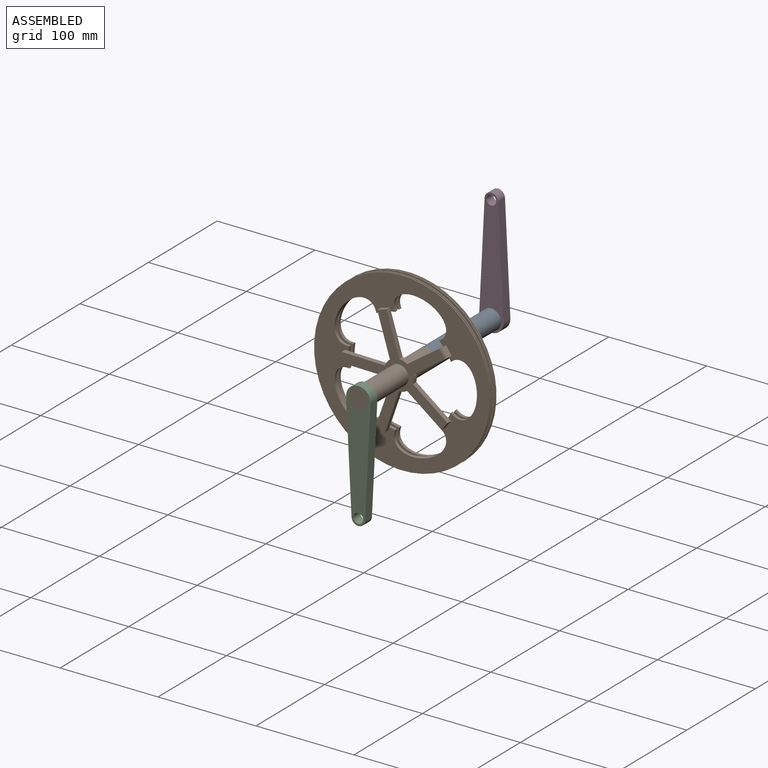
[diagram: assembled view]
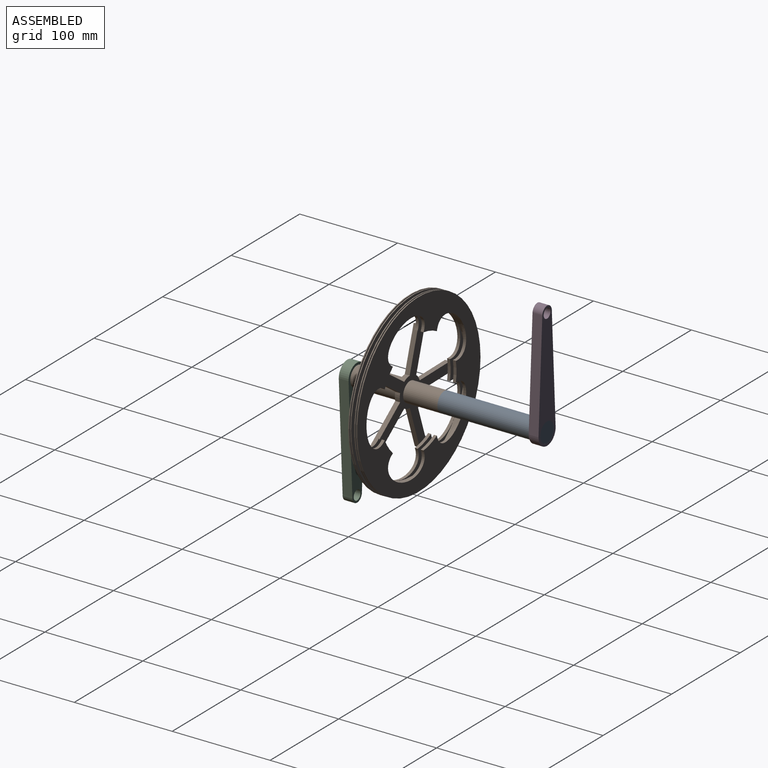
[diagram: assembled view, second angle]
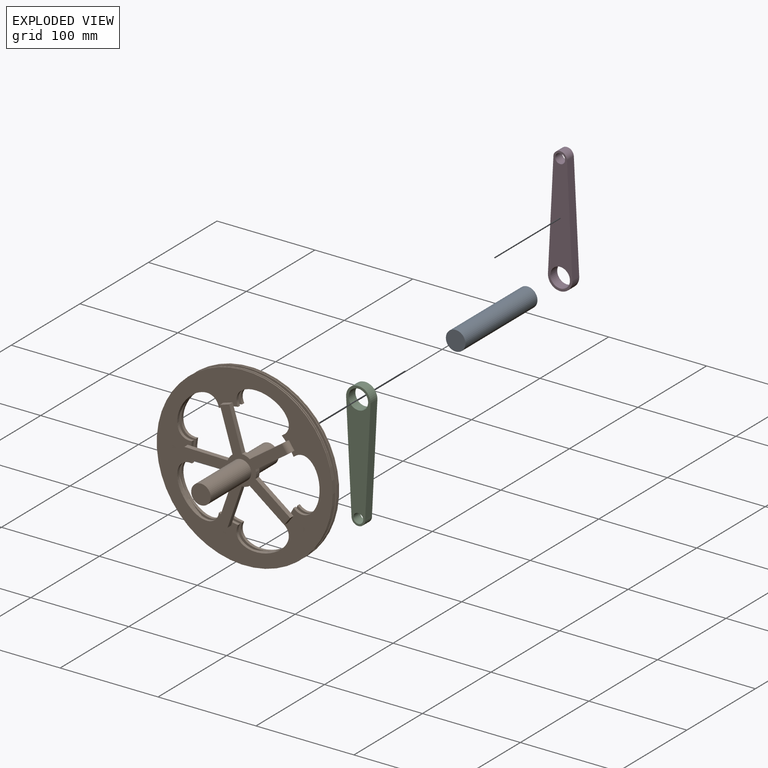
[diagram: exploded view]
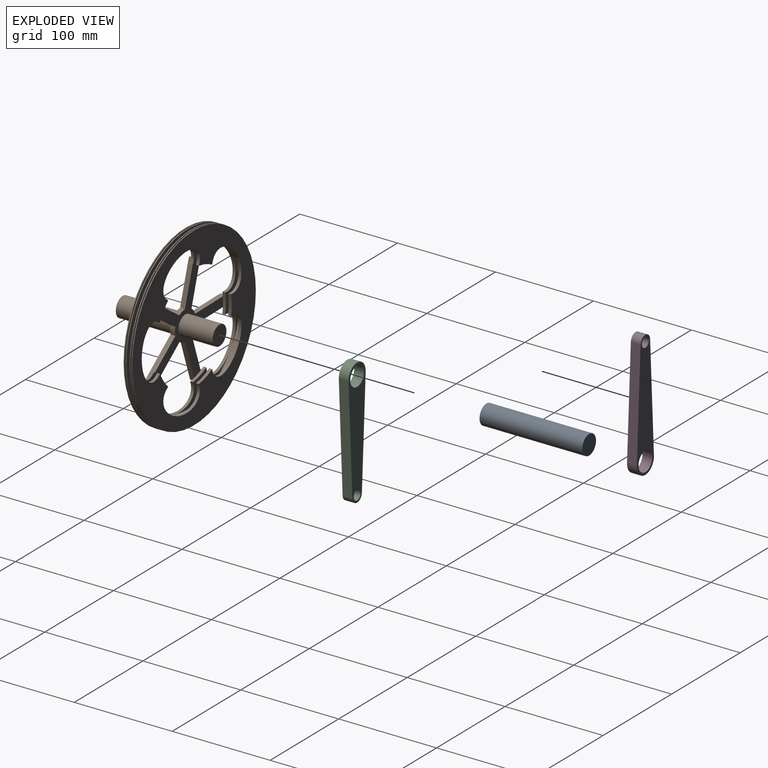
[diagram: exploded view, second angle]
ASSEMBLY  parts=4 mates=3
PART A: 3 faces, bbox 20x105x20 mm
  f0: cylinder r=10mm len=105mm, axis (0,1,0), area 6597.3mm2, adj f1,f2
  f1: plane 20x20mm, normal (0,-1,0), area 314.2mm2, adj f0
  f2: plane 20x20mm, normal (0,1,0), area 314.2mm2, adj f0
PART B: 291 faces, bbox 180x99x180 mm
  f0: cylinder r=90mm len=180mm, axis (0,1,0), area 565.5mm2, adj f2,f76
  f1: plane 153x153mm, normal (0,1,0), area 3549mm2, adj f3,f4,f5,f6,f7,f8,f9,f10
  f2: plane 180x180mm, normal (0,1,0), area 5350mm2, adj f0,f15,f16,f17,f18,f19,f20,f21
  f3: extruded ~48.98x42.62mm, area 275.9mm2, adj f1,f4,f12,f14
  f4: cylinder r=55mm len=19.47mm, axis (0,1,0), area 61.8mm2, adj f1,f3,f5,f14
  f5: extruded ~53.35x34.57mm, area 275.9mm2, adj f1,f4,f6,f14
  f6: cylinder r=55mm len=16.56mm, axis (0,1,0), area 61.8mm2, adj f1,f5,f7,f14
  f7: extruded ~54.99x26.61mm, area 275.9mm2, adj f1,f6,f8,f14
  f8: cylinder r=55mm len=16.56mm, axis (0,1,0), area 61.8mm2, adj f1,f7,f9,f14
  f9: extruded ~53.35x34.57mm, area 275.9mm2, adj f1,f8,f10,f14
  f10: cylinder r=55mm len=19.47mm, axis (0,1,0), area 61.8mm2, adj f1,f9,f11,f14
  f11: extruded ~48.98x42.62mm, area 275.9mm2, adj f1,f10,f12,f14
  f12: cylinder r=55mm len=20.47mm, axis (0,1,0), area 61.8mm2, adj f1,f3,f11,f14
  f13: cylinder r=90mm len=180mm, axis (0,1,0), area 565.5mm2, adj f14,f175
  f14: plane 180x180mm, normal (0,-1,0), area 10610.6mm2, adj f3,f4,f5,f6,f7,f8,f9,f10
  f15: cylinder r=7.5mm len=14.92mm, axis (0,-1,0), area 68.7mm2, adj f2,f16,f75,f239
  f16: cylinder r=85mm len=3mm, axis (0,-1,0), area 8.4mm2, adj f2,f15,f17,f239
  f17: cylinder r=7.5mm len=14.92mm, axis (0,-1,0), area 68.7mm2, adj f2,f16,f18,f239
  f18: cylinder r=85mm len=3mm, axis (0,-1,0), area 8.4mm2, adj f2,f17,f19,f239
  f19: cylinder r=7.5mm len=14.52mm, axis (0,-1,0), area 68.7mm2, adj f2,f18,f20,f239
  f20: cylinder r=85mm len=3mm, axis (0,-1,0), area 8.4mm2, adj f2,f19,f21,f239
  f21: cylinder r=7.5mm len=13.82mm, axis (0,-1,0), area 68.7mm2, adj f2,f20,f22,f239
  f22: cylinder r=85mm len=3mm, axis (0,-1,0), area 8.4mm2, adj f2,f21,f23,f239
  f23: cylinder r=7.5mm len=12.85mm, axis (0,-1,0), area 68.7mm2, adj f2,f22,f24,f239
  f24: cylinder r=85mm len=3mm, axis (0,-1,0), area 8.4mm2, adj f2,f23,f25,f239
  f25: cylinder r=7.5mm len=13.37mm, axis (0,-1,0), area 68.7mm2, adj f2,f24,f26,f239
  f26: cylinder r=85mm len=3mm, axis (0,-1,0), area 8.4mm2, adj f2,f25,f27,f239
  f27: cylinder r=7.5mm len=14.21mm, axis (0,-1,0), area 68.7mm2, adj f2,f26,f28,f239
  f28: cylinder r=85mm len=3mm, axis (0,-1,0), area 8.4mm2, adj f2,f27,f29,f239
  f29: cylinder r=7.5mm len=14.76mm, axis (0,-1,0), area 68.7mm2, adj f2,f28,f30,f239
  f30: cylinder r=85mm len=3mm, axis (0,-1,0), area 8.4mm2, adj f2,f29,f31,f239
  f31: cylinder r=7.5mm len=14.99mm, axis (0,-1,0), area 68.7mm2, adj f2,f30,f32,f239
  f32: cylinder r=85mm len=3mm, axis (0,-1,0), area 8.4mm2, adj f2,f31,f33,f239
  f33: cylinder r=7.5mm len=14.76mm, axis (0,-1,0), area 68.7mm2, adj f2,f32,f34,f239
  f34: cylinder r=85mm len=3mm, axis (0,-1,0), area 8.4mm2, adj f2,f33,f35,f239
  f35: cylinder r=7.5mm len=14.21mm, axis (0,-1,0), area 68.7mm2, adj f2,f34,f36,f239
  f36: cylinder r=85mm len=3mm, axis (0,-1,0), area 8.4mm2, adj f2,f35,f37,f239
  f37: cylinder r=7.5mm len=13.37mm, axis (0,-1,0), area 68.7mm2, adj f2,f36,f38,f239
  f38: cylinder r=85mm len=3mm, axis (0,-1,0), area 8.4mm2, adj f2,f37,f39,f239
  f39: cylinder r=7.5mm len=12.85mm, axis (0,-1,0), area 68.7mm2, adj f2,f38,f40,f239
  f40: cylinder r=85mm len=3mm, axis (0,-1,0), area 8.4mm2, adj f2,f39,f41,f239
  f41: cylinder r=7.5mm len=13.82mm, axis (0,-1,0), area 68.7mm2, adj f2,f40,f42,f239
  f42: cylinder r=85mm len=3mm, axis (0,-1,0), area 8.4mm2, adj f2,f41,f43,f239
  f43: cylinder r=7.5mm len=14.52mm, axis (0,-1,0), area 68.7mm2, adj f2,f42,f44,f239
  f44: cylinder r=85mm len=3mm, axis (0,-1,0), area 8.4mm2, adj f2,f43,f45,f239
  f45: cylinder r=7.5mm len=14.92mm, axis (0,-1,0), area 68.7mm2, adj f2,f44,f46,f239
  f46: cylinder r=85mm len=3mm, axis (0,-1,0), area 8.4mm2, adj f2,f45,f47,f239
  f47: cylinder r=7.5mm len=14.92mm, axis (0,-1,0), area 68.7mm2, adj f2,f46,f48,f239
  f48: cylinder r=85mm len=3mm, axis (0,-1,0), area 8.4mm2, adj f2,f47,f49,f239
  f49: cylinder r=7.5mm len=14.52mm, axis (0,-1,0), area 68.7mm2, adj f2,f48,f50,f239
  f50: cylinder r=85mm len=3mm, axis (0,-1,0), area 8.4mm2, adj f2,f49,f51,f239
  f51: cylinder r=7.5mm len=13.82mm, axis (0,-1,0), area 68.7mm2, adj f2,f50,f52,f239
  f52: cylinder r=85mm len=3mm, axis (0,-1,0), area 8.4mm2, adj f2,f51,f53,f239
  f53: cylinder r=7.5mm len=12.85mm, axis (0,-1,0), area 68.7mm2, adj f2,f52,f54,f239
  f54: cylinder r=85mm len=3mm, axis (0,-1,0), area 8.4mm2, adj f2,f53,f55,f239
  f55: cylinder r=7.5mm len=13.37mm, axis (0,-1,0), area 68.7mm2, adj f2,f54,f56,f239
  f56: cylinder r=85mm len=3mm, axis (0,-1,0), area 8.4mm2, adj f2,f55,f57,f239
  f57: cylinder r=7.5mm len=14.21mm, axis (0,-1,0), area 68.7mm2, adj f2,f56,f58,f239
  f58: cylinder r=85mm len=3mm, axis (0,-1,0), area 8.4mm2, adj f2,f57,f59,f239
  f59: cylinder r=7.5mm len=14.76mm, axis (0,-1,0), area 68.7mm2, adj f2,f58,f60,f239
  f60: cylinder r=85mm len=3mm, axis (0,-1,0), area 8.4mm2, adj f2,f59,f61,f239
  f61: cylinder r=7.5mm len=14.99mm, axis (0,-1,0), area 68.7mm2, adj f2,f60,f62,f239
  f62: cylinder r=85mm len=3mm, axis (0,-1,0), area 8.4mm2, adj f2,f61,f63,f239
  f63: cylinder r=7.5mm len=14.76mm, axis (0,-1,0), area 68.7mm2, adj f2,f62,f64,f239
  f64: cylinder r=85mm len=3mm, axis (0,-1,0), area 8.4mm2, adj f2,f63,f65,f239
  f65: cylinder r=7.5mm len=14.21mm, axis (0,-1,0), area 68.7mm2, adj f2,f64,f66,f239
  f66: cylinder r=85mm len=3mm, axis (0,-1,0), area 8.4mm2, adj f2,f65,f67,f239
  f67: cylinder r=7.5mm len=13.37mm, axis (0,-1,0), area 68.7mm2, adj f2,f66,f68,f239
  f68: cylinder r=85mm len=3mm, axis (0,-1,0), area 8.4mm2, adj f2,f67,f69,f239
  f69: cylinder r=7.5mm len=12.85mm, axis (0,-1,0), area 68.7mm2, adj f2,f68,f70,f239
  f70: cylinder r=85mm len=3mm, axis (0,-1,0), area 8.4mm2, adj f2,f69,f71,f239
  f71: cylinder r=7.5mm len=13.82mm, axis (0,-1,0), area 68.7mm2, adj f2,f70,f72,f239
  f72: cylinder r=85mm len=3mm, axis (0,-1,0), area 8.4mm2, adj f2,f71,f73,f239
  f73: cylinder r=7.5mm len=14.52mm, axis (0,-1,0), area 68.7mm2, adj f2,f72,f75,f239
  f74: cylinder r=76.5mm len=153mm, axis (0,-1,0), area 1442mm2, adj f1,f238
  f75: cylinder r=85mm len=3mm, axis (0,-1,0), area 8.4mm2, adj f2,f15,f73,f239
  f76: plane 180x180mm, normal (0,-1,0), area 9419.7mm2, adj f0,f77,f78,f79,f80,f81,f82,f83
  f77: cylinder r=77.5mm len=7.85mm, axis (0,-1,0), area 25.8mm2, adj f76,f78,f136,f232
  f78: cylinder r=8.5mm len=6.25mm, axis (0,-1,0), area 23.9mm2, adj f76,f77,f136,f233
  f79: cylinder r=77.5mm len=6.95mm, axis (0,-1,0), area 25.8mm2, adj f76,f80,f137,f230
  f80: cylinder r=8.5mm len=7.04mm, axis (0,-1,0), area 23.9mm2, adj f76,f79,f137,f231
  f81: cylinder r=77.5mm len=6.38mm, axis (0,-1,0), area 25.8mm2, adj f76,f82,f138,f228
  f82: cylinder r=8.5mm len=7.52mm, axis (0,-1,0), area 23.9mm2, adj f76,f81,f138,f229
  f83: cylinder r=77.5mm len=7.44mm, axis (0,-1,0), area 25.8mm2, adj f76,f84,f139,f226
  f84: cylinder r=8.5mm len=7.68mm, axis (0,-1,0), area 23.9mm2, adj f76,f83,f139,f227
  f85: cylinder r=77.5mm len=8.17mm, axis (0,-1,0), area 25.8mm2, adj f76,f86,f140,f224
  f86: cylinder r=8.5mm len=7.5mm, axis (0,-1,0), area 23.9mm2, adj f76,f85,f140,f225
  f87: cylinder r=77.5mm len=8.54mm, axis (0,-1,0), area 25.8mm2, adj f76,f88,f141,f222
  f88: cylinder r=8.5mm len=6.99mm, axis (0,-1,0), area 23.9mm2, adj f76,f87,f141,f223
  f89: cylinder r=77.5mm len=8.54mm, axis (0,-1,0), area 25.8mm2, adj f76,f90,f142,f220
  f90: cylinder r=8.5mm len=6.18mm, axis (0,-1,0), area 23.9mm2, adj f76,f89,f142,f221
  f91: cylinder r=77.5mm len=8.17mm, axis (0,-1,0), area 25.8mm2, adj f76,f92,f143,f218
  f92: cylinder r=8.5mm len=5.75mm, axis (0,-1,0), area 23.9mm2, adj f76,f91,f143,f219
  f93: cylinder r=77.5mm len=7.44mm, axis (0,-1,0), area 25.8mm2, adj f76,f94,f144,f216
  f94: cylinder r=8.5mm len=6.68mm, axis (0,-1,0), area 23.9mm2, adj f76,f93,f144,f217
  f95: cylinder r=77.5mm len=6.38mm, axis (0,-1,0), area 25.8mm2, adj f76,f96,f145,f214
  f96: cylinder r=8.5mm len=7.32mm, axis (0,-1,0), area 23.9mm2, adj f76,f95,f145,f215
  f97: cylinder r=77.5mm len=6.95mm, axis (0,-1,0), area 25.8mm2, adj f76,f98,f146,f212
  f98: cylinder r=8.5mm len=7.64mm, axis (0,-1,0), area 23.9mm2, adj f76,f97,f146,f213
  f99: cylinder r=77.5mm len=7.85mm, axis (0,-1,0), area 25.8mm2, adj f76,f100,f147,f210
  f100: cylinder r=8.5mm len=7.63mm, axis (0,-1,0), area 23.9mm2, adj f76,f99,f147,f211
  f101: cylinder r=77.5mm len=8.4mm, axis (0,-1,0), area 25.8mm2, adj f76,f102,f148,f208
  f102: cylinder r=8.5mm len=7.28mm, axis (0,-1,0), area 23.9mm2, adj f76,f101,f148,f209
  f103: cylinder r=77.5mm len=8.59mm, axis (0,-1,0), area 25.8mm2, adj f76,f104,f149,f206
  f104: cylinder r=8.5mm len=6.62mm, axis (0,-1,0), area 23.9mm2, adj f76,f103,f149,f207
  f105: cylinder r=77.5mm len=8.4mm, axis (0,-1,0), area 25.8mm2, adj f76,f106,f150,f204
  f106: cylinder r=8.5mm len=5.66mm, axis (0,-1,0), area 23.9mm2, adj f76,f105,f150,f205
  f107: cylinder r=77.5mm len=7.85mm, axis (0,-1,0), area 25.8mm2, adj f76,f108,f151,f202
  f108: cylinder r=8.5mm len=6.25mm, axis (0,-1,0), area 23.9mm2, adj f76,f107,f151,f203
  f109: cylinder r=77.5mm len=6.95mm, axis (0,-1,0), area 25.8mm2, adj f76,f110,f152,f200
  f110: cylinder r=8.5mm len=7.04mm, axis (0,-1,0), area 23.9mm2, adj f76,f109,f152,f201
  f111: cylinder r=77.5mm len=6.38mm, axis (0,-1,0), area 25.8mm2, adj f76,f112,f153,f198
  f112: cylinder r=8.5mm len=7.52mm, axis (0,-1,0), area 23.9mm2, adj f76,f111,f153,f199
  f113: cylinder r=77.5mm len=7.44mm, axis (0,-1,0), area 25.8mm2, adj f76,f114,f154,f196
  f114: cylinder r=8.5mm len=7.68mm, axis (0,-1,0), area 23.9mm2, adj f76,f113,f154,f197
  f115: cylinder r=77.5mm len=8.17mm, axis (0,-1,0), area 25.8mm2, adj f76,f116,f155,f194
  f116: cylinder r=8.5mm len=7.5mm, axis (0,-1,0), area 23.9mm2, adj f76,f115,f155,f195
  f117: cylinder r=77.5mm len=8.54mm, axis (0,-1,0), area 25.8mm2, adj f76,f118,f156,f192
  f118: cylinder r=8.5mm len=6.99mm, axis (0,-1,0), area 23.9mm2, adj f76,f117,f156,f193
  f119: cylinder r=77.5mm len=8.54mm, axis (0,-1,0), area 25.8mm2, adj f76,f120,f157,f190
  f120: cylinder r=8.5mm len=6.18mm, axis (0,-1,0), area 23.9mm2, adj f76,f119,f157,f191
  f121: cylinder r=77.5mm len=8.17mm, axis (0,-1,0), area 25.8mm2, adj f76,f122,f158,f188
  f122: cylinder r=8.5mm len=5.75mm, axis (0,-1,0), area 23.9mm2, adj f76,f121,f158,f189
  f123: cylinder r=77.5mm len=7.44mm, axis (0,-1,0), area 25.8mm2, adj f76,f124,f159,f186
  f124: cylinder r=8.5mm len=6.68mm, axis (0,-1,0), area 23.9mm2, adj f76,f123,f159,f187
  f125: cylinder r=77.5mm len=6.38mm, axis (0,-1,0), area 25.8mm2, adj f76,f126,f160,f184
  f126: cylinder r=8.5mm len=7.32mm, axis (0,-1,0), area 23.9mm2, adj f76,f125,f160,f185
  f127: cylinder r=77.5mm len=6.95mm, axis (0,-1,0), area 25.8mm2, adj f76,f128,f161,f182
  f128: cylinder r=8.5mm len=7.64mm, axis (0,-1,0), area 23.9mm2, adj f76,f127,f161,f183
  f129: cylinder r=77.5mm len=7.85mm, axis (0,-1,0), area 25.8mm2, adj f76,f130,f162,f180
  f130: cylinder r=8.5mm len=7.63mm, axis (0,-1,0), area 23.9mm2, adj f76,f129,f162,f181
  f131: cylinder r=77.5mm len=8.4mm, axis (0,-1,0), area 25.8mm2, adj f76,f132,f163,f178
  f132: cylinder r=8.5mm len=7.28mm, axis (0,-1,0), area 23.9mm2, adj f76,f131,f163,f179
  f133: cylinder r=77.5mm len=8.59mm, axis (0,-1,0), area 25.8mm2, adj f76,f134,f164,f176
  f134: cylinder r=8.5mm len=6.62mm, axis (0,-1,0), area 23.9mm2, adj f76,f133,f164,f177
  f135: cylinder r=8.5mm len=5.66mm, axis (0,-1,0), area 23.9mm2, adj f76,f235,f236,f237
  f136: plane 7.96x7.85mm, normal (0,-1,0), area 20.9mm2, adj f77,f78,f232,f233
  f137: plane 8.11x7.69mm, normal (0,-1,0), area 20.9mm2, adj f79,f80,f230,f231
  f138: plane 8.06x7.92mm, normal (0,-1,0), area 20.9mm2, adj f81,f82,f228,f229
  f139: plane 8.08x7.44mm, normal (0,-1,0), area 20.9mm2, adj f83,f84,f226,f227
  f140: plane 8.17x7.75mm, normal (0,-1,0), area 20.9mm2, adj f85,f86,f224,f225
  f141: plane 8.54x7.07mm, normal (0,-1,0), area 20.9mm2, adj f87,f88,f222,f223
  f142: plane 8.54x7.07mm, normal (0,-1,0), area 20.9mm2, adj f89,f90,f220,f221
  f143: plane 8.17x7.75mm, normal (0,-1,0), area 20.9mm2, adj f91,f92,f218,f219
  f144: plane 8.08x7.44mm, normal (0,-1,0), area 20.9mm2, adj f93,f94,f216,f217
  f145: plane 8.06x7.92mm, normal (0,-1,0), area 20.9mm2, adj f95,f96,f214,f215
  f146: plane 8.11x7.69mm, normal (0,-1,0), area 20.9mm2, adj f97,f98,f212,f213
  f147: plane 7.96x7.85mm, normal (0,-1,0), area 20.9mm2, adj f99,f100,f210,f211
  f148: plane 8.4x7.45mm, normal (0,-1,0), area 20.9mm2, adj f101,f102,f208,f209
  f149: plane 8.59x6.62mm, normal (0,-1,0), area 20.9mm2, adj f103,f104,f206,f207
  f150: plane 8.4x7.45mm, normal (0,-1,0), area 20.9mm2, adj f105,f106,f204,f205
  f151: plane 7.96x7.85mm, normal (0,-1,0), area 20.9mm2, adj f107,f108,f202,f203
  f152: plane 8.11x7.69mm, normal (0,-1,0), area 20.9mm2, adj f109,f110,f200,f201
  f153: plane 8.06x7.92mm, normal (0,-1,0), area 20.9mm2, adj f111,f112,f198,f199
  f154: plane 8.08x7.44mm, normal (0,-1,0), area 20.9mm2, adj f113,f114,f196,f197
  f155: plane 8.17x7.75mm, normal (0,-1,0), area 20.9mm2, adj f115,f116,f194,f195
  f156: plane 8.54x7.07mm, normal (0,-1,0), area 20.9mm2, adj f117,f118,f192,f193
  f157: plane 8.54x7.07mm, normal (0,-1,0), area 20.9mm2, adj f119,f120,f190,f191
  f158: plane 8.17x7.75mm, normal (0,-1,0), area 20.9mm2, adj f121,f122,f188,f189
  f159: plane 8.08x7.44mm, normal (0,-1,0), area 20.9mm2, adj f123,f124,f186,f187
  f160: plane 8.06x7.92mm, normal (0,-1,0), area 20.9mm2, adj f125,f126,f184,f185
  f161: plane 8.11x7.69mm, normal (0,-1,0), area 20.9mm2, adj f127,f128,f182,f183
  f162: plane 7.96x7.85mm, normal (0,-1,0), area 20.9mm2, adj f129,f130,f180,f181
  f163: plane 8.4x7.45mm, normal (0,-1,0), area 20.9mm2, adj f131,f132,f178,f179
  f164: plane 8.59x6.62mm, normal (0,-1,0), area 20.9mm2, adj f133,f134,f176,f177
  f165: extruded ~50.98x44.33mm, area 93.9mm2, adj f76,f166,f174,f175
  f166: cylinder r=56mm len=17.33mm, axis (0,1,0), area 18.3mm2, adj f76,f165,f167,f175
  f167: extruded ~55.38x35.78mm, area 93.9mm2, adj f76,f166,f168,f175
  f168: cylinder r=56mm len=14.74mm, axis (0,1,0), area 18.3mm2, adj f76,f167,f169,f175
  f169: extruded ~56.97x27.28mm, area 93.9mm2, adj f76,f168,f170,f175
  f170: cylinder r=56mm len=14.74mm, axis (0,1,0), area 18.3mm2, adj f76,f169,f171,f175
  f171: extruded ~55.38x35.78mm, area 93.9mm2, adj f76,f170,f172,f175
  f172: cylinder r=56mm len=17.33mm, axis (0,1,0), area 18.3mm2, adj f76,f171,f173,f175
  f173: extruded ~50.98x44.33mm, area 93.9mm2, adj f76,f172,f174,f175
  f174: cylinder r=56mm len=18.22mm, axis (0,1,0), area 18.3mm2, adj f76,f165,f173,f175
  f175: plane 180x180mm, normal (0,1,0), area 10046.9mm2, adj f13,f165,f166,f167,f168,f169,f170,f171
  f176: cylinder r=8.5mm len=6.62mm, axis (0,-1,0), area 23.9mm2, adj f76,f133,f164,f177
  f177: cylinder r=84mm len=3mm, axis (0,-1,0), area 2.4mm2, adj f76,f134,f164,f176
  f178: cylinder r=8.5mm len=5.66mm, axis (0,-1,0), area 23.9mm2, adj f76,f131,f163,f179
  f179: cylinder r=84mm len=3mm, axis (0,-1,0), area 2.4mm2, adj f76,f132,f163,f178
  f180: cylinder r=8.5mm len=6.25mm, axis (0,-1,0), area 23.9mm2, adj f76,f129,f162,f181
  f181: cylinder r=84mm len=3mm, axis (0,-1,0), area 2.4mm2, adj f76,f130,f162,f180
  f182: cylinder r=8.5mm len=7.04mm, axis (0,-1,0), area 23.9mm2, adj f76,f127,f161,f183
  f183: cylinder r=84mm len=3mm, axis (0,-1,0), area 2.4mm2, adj f76,f128,f161,f182
  f184: cylinder r=8.5mm len=7.52mm, axis (0,-1,0), area 23.9mm2, adj f76,f125,f160,f185
  f185: cylinder r=84mm len=3mm, axis (0,-1,0), area 2.4mm2, adj f76,f126,f160,f184
  f186: cylinder r=8.5mm len=7.68mm, axis (0,-1,0), area 23.9mm2, adj f76,f123,f159,f187
  f187: cylinder r=84mm len=3mm, axis (0,-1,0), area 2.4mm2, adj f76,f124,f159,f186
  f188: cylinder r=8.5mm len=7.5mm, axis (0,-1,0), area 23.9mm2, adj f76,f121,f158,f189
  f189: cylinder r=84mm len=3mm, axis (0,-1,0), area 2.4mm2, adj f76,f122,f158,f188
  f190: cylinder r=8.5mm len=6.99mm, axis (0,-1,0), area 23.9mm2, adj f76,f119,f157,f191
  f191: cylinder r=84mm len=3mm, axis (0,-1,0), area 2.4mm2, adj f76,f120,f157,f190
  f192: cylinder r=8.5mm len=6.18mm, axis (0,-1,0), area 23.9mm2, adj f76,f117,f156,f193
  f193: cylinder r=84mm len=3mm, axis (0,-1,0), area 2.4mm2, adj f76,f118,f156,f192
  f194: cylinder r=8.5mm len=5.75mm, axis (0,-1,0), area 23.9mm2, adj f76,f115,f155,f195
  f195: cylinder r=84mm len=3mm, axis (0,-1,0), area 2.4mm2, adj f76,f116,f155,f194
  f196: cylinder r=8.5mm len=6.68mm, axis (0,-1,0), area 23.9mm2, adj f76,f113,f154,f197
  f197: cylinder r=84mm len=3mm, axis (0,-1,0), area 2.4mm2, adj f76,f114,f154,f196
  f198: cylinder r=8.5mm len=7.32mm, axis (0,-1,0), area 23.9mm2, adj f76,f111,f153,f199
  f199: cylinder r=84mm len=3mm, axis (0,-1,0), area 2.4mm2, adj f76,f112,f153,f198
  f200: cylinder r=8.5mm len=7.64mm, axis (0,-1,0), area 23.9mm2, adj f76,f109,f152,f201
  f201: cylinder r=84mm len=3mm, axis (0,-1,0), area 2.4mm2, adj f76,f110,f152,f200
  f202: cylinder r=8.5mm len=7.63mm, axis (0,-1,0), area 23.9mm2, adj f76,f107,f151,f203
  f203: cylinder r=84mm len=3mm, axis (0,-1,0), area 2.4mm2, adj f76,f108,f151,f202
  f204: cylinder r=8.5mm len=7.28mm, axis (0,-1,0), area 23.9mm2, adj f76,f105,f150,f205
  f205: cylinder r=84mm len=3mm, axis (0,-1,0), area 2.4mm2, adj f76,f106,f150,f204
  f206: cylinder r=8.5mm len=6.62mm, axis (0,-1,0), area 23.9mm2, adj f76,f103,f149,f207
  f207: cylinder r=84mm len=3mm, axis (0,-1,0), area 2.4mm2, adj f76,f104,f149,f206
  f208: cylinder r=8.5mm len=5.66mm, axis (0,-1,0), area 23.9mm2, adj f76,f101,f148,f209
  f209: cylinder r=84mm len=3mm, axis (0,-1,0), area 2.4mm2, adj f76,f102,f148,f208
  f210: cylinder r=8.5mm len=6.25mm, axis (0,-1,0), area 23.9mm2, adj f76,f99,f147,f211
  f211: cylinder r=84mm len=3mm, axis (0,-1,0), area 2.4mm2, adj f76,f100,f147,f210
  f212: cylinder r=8.5mm len=7.04mm, axis (0,-1,0), area 23.9mm2, adj f76,f97,f146,f213
  f213: cylinder r=84mm len=3mm, axis (0,-1,0), area 2.4mm2, adj f76,f98,f146,f212
  f214: cylinder r=8.5mm len=7.52mm, axis (0,-1,0), area 23.9mm2, adj f76,f95,f145,f215
  f215: cylinder r=84mm len=3mm, axis (0,-1,0), area 2.4mm2, adj f76,f96,f145,f214
  f216: cylinder r=8.5mm len=7.68mm, axis (0,-1,0), area 23.9mm2, adj f76,f93,f144,f217
  f217: cylinder r=84mm len=3mm, axis (0,-1,0), area 2.4mm2, adj f76,f94,f144,f216
  f218: cylinder r=8.5mm len=7.5mm, axis (0,-1,0), area 23.9mm2, adj f76,f91,f143,f219
  f219: cylinder r=84mm len=3mm, axis (0,-1,0), area 2.4mm2, adj f76,f92,f143,f218
  f220: cylinder r=8.5mm len=6.99mm, axis (0,-1,0), area 23.9mm2, adj f76,f89,f142,f221
  f221: cylinder r=84mm len=3mm, axis (0,-1,0), area 2.4mm2, adj f76,f90,f142,f220
  f222: cylinder r=8.5mm len=6.18mm, axis (0,-1,0), area 23.9mm2, adj f76,f87,f141,f223
  f223: cylinder r=84mm len=3mm, axis (0,-1,0), area 2.4mm2, adj f76,f88,f141,f222
  f224: cylinder r=8.5mm len=5.75mm, axis (0,-1,0), area 23.9mm2, adj f76,f85,f140,f225
  f225: cylinder r=84mm len=3mm, axis (0,-1,0), area 2.4mm2, adj f76,f86,f140,f224
  f226: cylinder r=8.5mm len=6.68mm, axis (0,-1,0), area 23.9mm2, adj f76,f83,f139,f227
  f227: cylinder r=84mm len=3mm, axis (0,-1,0), area 2.4mm2, adj f76,f84,f139,f226
  f228: cylinder r=8.5mm len=7.32mm, axis (0,-1,0), area 23.9mm2, adj f76,f81,f138,f229
  f229: cylinder r=84mm len=3mm, axis (0,-1,0), area 2.4mm2, adj f76,f82,f138,f228
  f230: cylinder r=8.5mm len=7.64mm, axis (0,-1,0), area 23.9mm2, adj f76,f79,f137,f231
  f231: cylinder r=84mm len=3mm, axis (0,-1,0), area 2.4mm2, adj f76,f80,f137,f230
  f232: cylinder r=8.5mm len=7.63mm, axis (0,-1,0), area 23.9mm2, adj f76,f77,f136,f233
  f233: cylinder r=84mm len=3mm, axis (0,-1,0), area 2.4mm2, adj f76,f78,f136,f232
  f234: cylinder r=8.5mm len=7.28mm, axis (0,-1,0), area 23.9mm2, adj f76,f235,f236,f237
  f235: cylinder r=77.5mm len=8.4mm, axis (0,-1,0), area 25.8mm2, adj f76,f135,f234,f237
  f236: cylinder r=84mm len=3mm, axis (0,-1,0), area 2.4mm2, adj f76,f135,f234,f237
  f237: plane 8.4x7.45mm, normal (0,-1,0), area 20.9mm2, adj f135,f234,f235,f236
  f238: plane 153x153mm, normal (0,-1,0), area 3549mm2, adj f74,f241,f242,f243,f244,f245,f246,f247
  f239: plane 180x180mm, normal (0,-1,0), area 5350mm2, adj f15,f16,f17,f18,f19,f20,f21,f22
  f240: cylinder r=90mm len=180mm, axis (0,-1,0), area 565.5mm2, adj f239,f264
  f241: extruded ~48.98x42.62mm, area 275.9mm2, adj f238,f242,f251,f252
  f242: cylinder r=55mm len=19.47mm, axis (0,-1,0), area 61.8mm2, adj f238,f241,f243,f252,f265
  f243: extruded ~53.35x34.57mm, area 275.9mm2, adj f238,f242,f244,f252
  f244: cylinder r=55mm len=16.56mm, axis (0,-1,0), area 61.8mm2, adj f238,f243,f245,f252,f265
  f245: extruded ~54.99x26.61mm, area 275.9mm2, adj f238,f244,f246,f252
  f246: cylinder r=55mm len=16.56mm, axis (0,-1,0), area 61.8mm2, adj f238,f245,f247,f252,f265
  f247: extruded ~53.35x34.57mm, area 275.9mm2, adj f238,f246,f248,f252
  f248: cylinder r=55mm len=19.47mm, axis (0,-1,0), area 61.8mm2, adj f238,f247,f249,f252,f265
  f249: extruded ~48.98x42.62mm, area 275.9mm2, adj f238,f248,f251,f252
  f250: cylinder r=90mm len=180mm, axis (0,-1,0), area 565.5mm2, adj f252,f263
  f251: cylinder r=55mm len=20.47mm, axis (0,-1,0), area 61.8mm2, adj f238,f241,f249,f252,f265
  f252: plane 180x180mm, normal (0,1,0), area 10436.8mm2, adj f241,f242,f243,f244,f245,f246,f247,f248
  f253: extruded ~50.98x44.33mm, area 93.9mm2, adj f254,f262,f263,f264
  f254: cylinder r=56mm len=17.33mm, axis (0,-1,0), area 18.3mm2, adj f253,f255,f263,f264
  f255: extruded ~55.38x35.78mm, area 93.9mm2, adj f254,f256,f263,f264
  f256: cylinder r=56mm len=14.74mm, axis (0,-1,0), area 18.3mm2, adj f255,f257,f263,f264
  f257: extruded ~56.97x27.28mm, area 93.9mm2, adj f256,f258,f263,f264
  f258: cylinder r=56mm len=14.74mm, axis (0,-1,0), area 18.3mm2, adj f257,f259,f263,f264
  f259: extruded ~55.38x35.78mm, area 93.9mm2, adj f258,f260,f263,f264
  f260: cylinder r=56mm len=17.33mm, axis (0,-1,0), area 18.3mm2, adj f259,f261,f263,f264
  f261: extruded ~50.98x44.33mm, area 93.9mm2, adj f260,f262,f263,f264
  f262: cylinder r=56mm len=18.22mm, axis (0,-1,0), area 18.3mm2, adj f253,f261,f263,f264
  f263: plane 180x180mm, normal (0,-1,0), area 10046.9mm2, adj f250,f253,f254,f255,f256,f257,f258,f259
  f264: plane 180x180mm, normal (0,1,0), area 10046.9mm2, adj f240,f253,f254,f255,f256,f257,f258,f259
  f265: plane 107.26x102.65mm, normal (0,-1,0), area 2403.1mm2, adj f242,f244,f246,f248,f251,f266,f267,f268
  f266: cylinder r=15mm len=8.53mm, axis (0,-1,0), area 43.3mm2, adj f265,f267,f284,f285
  f267: plane 36.2x25.35mm, normal (-0.82,0,0.57), area 215.6mm2, adj f252,f265,f266,f285,f286
  f268: plane 36.31x25.42mm, normal (0.82,0,-0.57), area 216.2mm2, adj f252,f265,f269,f285,f286
  f269: cylinder r=15mm len=8.1mm, axis (0,-1,0), area 43.3mm2, adj f265,f268,f270,f285
  f270: plane 42.26x12.92mm, normal (0.29,0,0.96), area 221mm2, adj f252,f265,f269,f271,f285
  f271: plane 9.56x5mm, normal (0.96,0,-0.29), area 50mm2, adj f252,f270,f272,f285
  f272: plane 42.38x12.96mm, normal (-0.29,0,-0.96), area 221.6mm2, adj f252,f265,f271,f273,f285
  f273: cylinder r=15mm len=6.88mm, axis (0,-1,0), area 43.3mm2, adj f265,f272,f274,f285
  f274: plane 44.19x5mm, normal (1,0,0.02), area 221mm2, adj f252,f265,f273,f275,f285
  f275: plane 10x5mm, normal (0.02,0,-1), area 50mm2, adj f252,f274,f276,f285
  f276: plane 44.31x5mm, normal (-1,0,-0.02), area 221.6mm2, adj f252,f265,f275,f277,f285
  f277: cylinder r=15mm len=6.93mm, axis (0,-1,0), area 43.3mm2, adj f265,f276,f278,f285
  f278: plane 41.79x14.39mm, normal (0.33,0,-0.95), area 221mm2, adj f252,f265,f277,f279,f285
  f279: plane 9.46x5mm, normal (-0.95,0,-0.33), area 50mm2, adj f252,f278,f280,f285
  f280: plane 41.91x14.43mm, normal (-0.33,0,0.95), area 221.6mm2, adj f252,f265,f279,f281,f285
  f281: cylinder r=15mm len=8.13mm, axis (0,-1,0), area 43.3mm2, adj f265,f280,f282,f285
  f282: plane 35.3x26.6mm, normal (-0.8,0,-0.6), area 221mm2, adj f252,f265,f281,f283,f285
  f283: plane 7.99x6.02mm, normal (-0.6,0,0.8), area 50mm2, adj f252,f282,f284,f285
  f284: plane 35.4x26.67mm, normal (0.8,0,0.6), area 221.6mm2, adj f252,f265,f266,f283,f285
  f285: plane 114.16x108.24mm, normal (0,1,0), area 2526.8mm2, adj f266,f267,f268,f269,f270,f271,f272,f273
  f286: cylinder r=5mm len=11.06mm, axis (-0.82,0,0.57), area 78.5mm2, adj f252,f267,f268,f285
  f287: plane 20x20mm, normal (0,1,0), area 314.2mm2, adj f288
  f288: cylinder r=10mm len=59mm, axis (0,1,0), area 3707.1mm2, adj f285,f287
  f289: cylinder r=10mm len=35mm, axis (0,1,0), area 2199.1mm2, adj f265,f290
  f290: plane 20x20mm, normal (0,-1,0), area 314.2mm2, adj f289
PART C: 8 faces, bbox 25x10x129.3 mm
  f0: plane 109.23x10mm, normal (1,0,-0.05), area 1093.7mm2, adj f1,f3,f4,f5
  f1: cylinder r=12.5mm len=25mm, axis (0,1,0), area 392.7mm2, adj f0,f2,f4,f5
  f2: plane 109.86x10mm, normal (-1,0,-0.05), area 1100mm2, adj f1,f3,f4,f5
  f3: cylinder r=6.98mm len=13.95mm, axis (0,1,0), area 225.5mm2, adj f0,f2,f4,f5
  f4: plane 129.34x25mm, normal (0,-1,0), area 2065.7mm2, adj f0,f1,f2,f3,f6,f7
  f5: plane 129.34x25mm, normal (0,1,0), area 2065.7mm2, adj f0,f1,f2,f3,f6,f7
  f6: cylinder r=5mm len=10mm, axis (0,-1,0), area 314.2mm2, adj f4,f5
  f7: cylinder r=10mm len=20mm, axis (0,-1,0), area 628.3mm2, adj f4,f5
PART D: same geometry as C
PLACE A rot(axis=(-0.71,0,-0.71),180deg) t=(49.86,162.72,43.85)mm
PLACE B rot(axis=(-0.71,0,-0.71),180deg) t=(49.86,133.72,43.85)mm
PLACE C t=(49.89,73.72,-21.44)mm
PLACE D rot(axis=(0,-1,0),180deg) t=(49.83,267.72,109.14)mm
MATE revolute B.f288 <-> C.f1  axis (0,-1,0) through (49.86,63.72,43.85)mm
MATE fastened B.f288 <-> A.f0  axis (0,1,0) through (49.86,162.72,43.85)mm
MATE revolute D.f1 <-> A.f0  axis (0,1,0) through (49.86,267.72,43.85)mm
